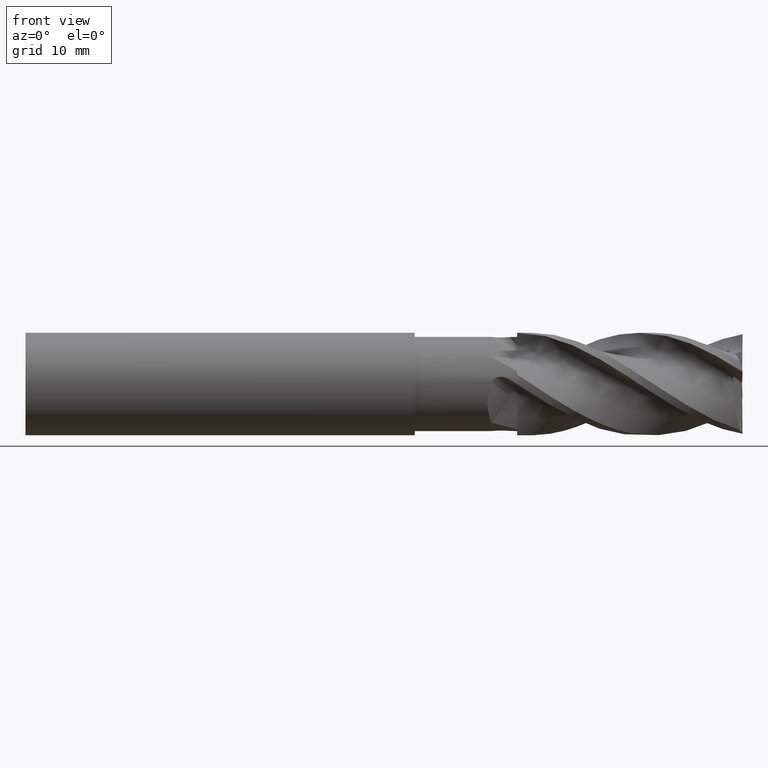
[diagram: clean part render]
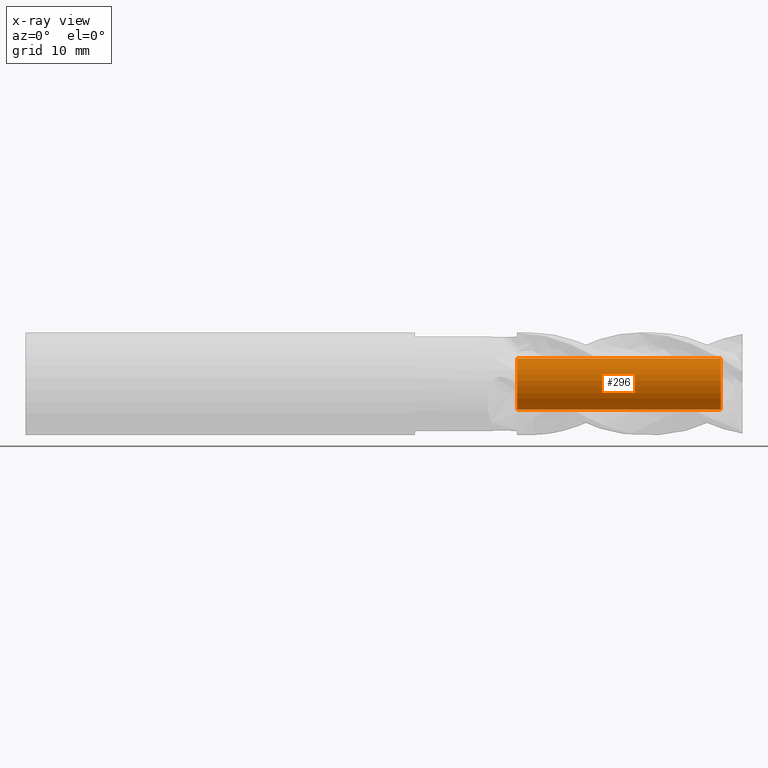
[diagram: x-ray — body ghosted, one internal face saturated and labeled with its STEP entity id]
A machine part, front view, then the same camera in x-ray: the body is ghosted and one INTERNAL B-rep face — a face not visible from any outside direction — is saturated and labeled: STEP entity #296.
In plain terms, the highlighted cylindrical surface (edge-blend (fillet) strip) has radius 2.5 mm, axis along (-1, -0, -0).
Its self-contained STEP definition (entity closure, byte-faithful):
#21 = CYLINDRICAL_SURFACE ( 'NONE', #227, 2.500000000000011500 ) ;
#43 = FACE_OUTER_BOUND ( 'NONE', #6235, .T. ) ;
#107 = CIRCLE ( 'NONE', #185, 2.500000000000011500 ) ;
#109 = LINE ( 'NONE', #1155, #118 ) ;
#118 = VECTOR ( 'NONE', #1156, 1000.000000000000000 ) ;
#185 = AXIS2_PLACEMENT_3D ( 'NONE', #1084, #1086, #1087 ) ;
#211 = EDGE_CURVE ( 'NONE', #3949, #3938, #107, .T. ) ;
#218 = EDGE_CURVE ( 'NONE', #3965, #3938, #109, .T. ) ;
#227 = AXIS2_PLACEMENT_3D ( 'NONE', #1181, #1180, #1179 ) ;
#296 = ADVANCED_FACE ( 'NONE', ( #43 ), #21, .F. ) ;
#373 = CIRCLE ( 'NONE', #1849, 2.500000000000011500 ) ;
#408 = EDGE_CURVE ( 'NONE', #3906, #3949, #4384, .T. ) ;
#417 = EDGE_CURVE ( 'NONE', #3906, #3965, #373, .T. ) ;
#488 = ORIENTED_EDGE ( 'NONE', *, *, #211, .T. ) ;
#496 = ORIENTED_EDGE ( 'NONE', *, *, #218, .F. ) ;
#1084 = CARTESIAN_POINT ( 'NONE',  ( 8.000000000000007100, 0.0000000000000000000, 0.0000000000000000000 ) ) ;
#1086 = DIRECTION ( 'NONE',  ( -1.000000000000000000, -0.0000000000000000000, -0.0000000000000000000 ) ) ;
#1087 = DIRECTION ( 'NONE',  ( 0.0000000000000000000, 0.0000000000000000000, 1.000000000000000000 ) ) ;
#1155 = CARTESIAN_POINT ( 'NONE',  ( -39.76065438357068200, 0.0000000000000000000, 2.500000000000011500 ) ) ;
#1156 = DIRECTION ( 'NONE',  ( -1.000000000000000000, -0.0000000000000000000, -0.0000000000000000000 ) ) ;
#1179 = DIRECTION ( 'NONE',  ( 0.0000000000000000000, 0.0000000000000000000, 1.000000000000000000 ) ) ;
#1180 = DIRECTION ( 'NONE',  ( -1.000000000000000000, -0.0000000000000000000, -0.0000000000000000000 ) ) ;
#1181 = CARTESIAN_POINT ( 'NONE',  ( -39.76065438357068200, 0.0000000000000000000, 0.0000000000000000000 ) ) ;
#1849 = AXIS2_PLACEMENT_3D ( 'NONE', #3682, #3686, #3687 ) ;
#2169 = ORIENTED_EDGE ( 'NONE', *, *, #417, .F. ) ;
#2232 = ORIENTED_EDGE ( 'NONE', *, *, #408, .T. ) ;
#3614 = CARTESIAN_POINT ( 'NONE',  ( -39.76065438357068200, 3.061616997868397400E-016, -2.500000000000011500 ) ) ;
#3615 = DIRECTION ( 'NONE',  ( -1.000000000000000000, -0.0000000000000000000, -0.0000000000000000000 ) ) ;
#3682 = CARTESIAN_POINT ( 'NONE',  ( 27.88690969831386500, 0.0000000000000000000, 0.0000000000000000000 ) ) ;
#3686 = DIRECTION ( 'NONE',  ( -1.000000000000000000, -0.0000000000000000000, -0.0000000000000000000 ) ) ;
#3687 = DIRECTION ( 'NONE',  ( 0.0000000000000000000, 0.0000000000000000000, 1.000000000000000000 ) ) ;
#3906 = VERTEX_POINT ( 'NONE', #4228 ) ;
#3938 = VERTEX_POINT ( 'NONE', #4300 ) ;
#3949 = VERTEX_POINT ( 'NONE', #4310 ) ;
#3965 = VERTEX_POINT ( 'NONE', #4324 ) ;
#4228 = CARTESIAN_POINT ( 'NONE',  ( 27.88690969831386500, 3.061616997868397400E-016, -2.500000000000011500 ) ) ;
#4300 = CARTESIAN_POINT ( 'NONE',  ( 8.000000000000007100, 0.0000000000000000000, 2.500000000000011500 ) ) ;
#4310 = CARTESIAN_POINT ( 'NONE',  ( 8.000000000000007100, 3.061616997868397400E-016, -2.500000000000011500 ) ) ;
#4324 = CARTESIAN_POINT ( 'NONE',  ( 27.88690969831386500, 0.0000000000000000000, 2.500000000000011500 ) ) ;
#4383 = VECTOR ( 'NONE', #3615, 1000.000000000000000 ) ;
#4384 = LINE ( 'NONE', #3614, #4383 ) ;
#6235 = EDGE_LOOP ( 'NONE', ( #2169, #2232, #488, #496 ) ) ;